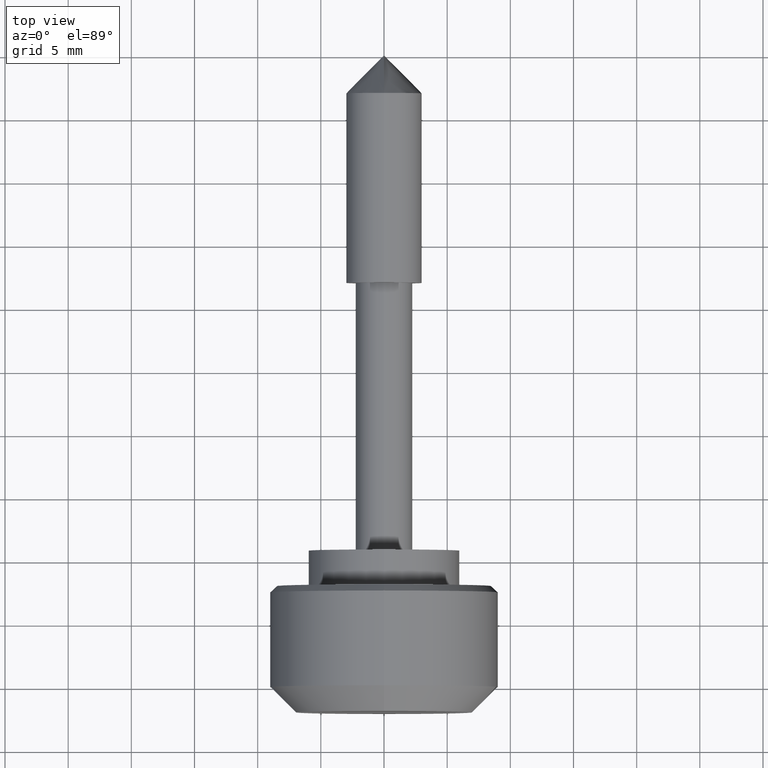
[diagram: clean part render]
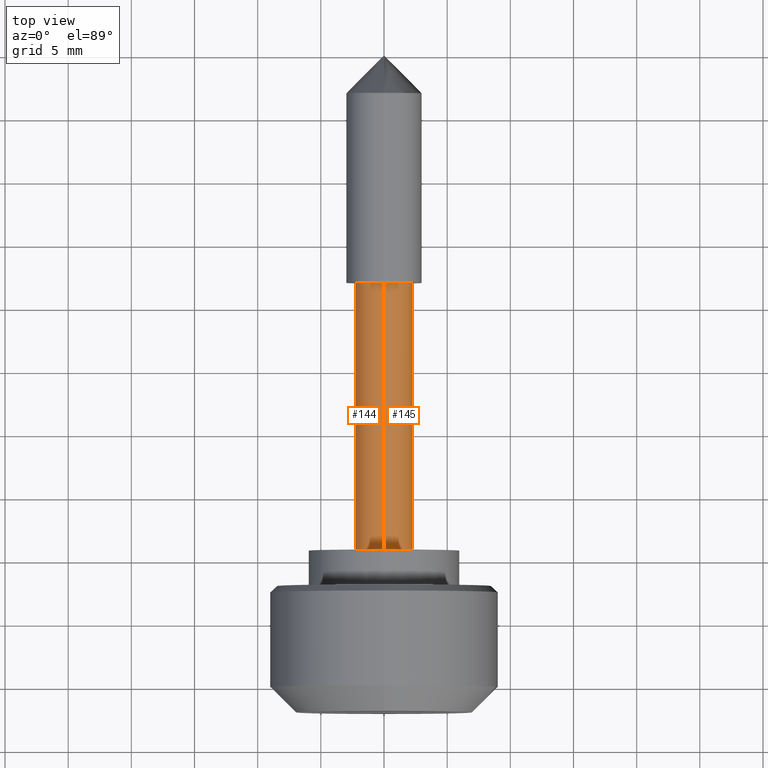
[diagram: same view with one multi-face feature highlighted, each face labeled with its STEP entity id]
A machine part, top view. The highlighted faces form ONE feature: a constant-radius fillet chain: 2 tangent blend faces with common blend radius 2.25 mm. The faces share edges in the B-rep.
Their STEP definitions:
[1] entity #145 (Cylinder):
#145=ADVANCED_FACE('',(#490),#489,.T.);
#489=CYLINDRICAL_SURFACE('',#764,2.25000000000E+00);
#490=FACE_OUTER_BOUND('',#765,.T.);
#761=CARTESIAN_POINT('',(1.00000000000E+03,0.00000000000E+00,0.00000000000E+00));
#762=DIRECTION('',(1.00000000000E+00,-0.00000000000E+00,-0.00000000000E+00));
#763=DIRECTION('',(-0.00000000000E+00,-0.00000000000E+00,-1.00000000000E+00));
#764=AXIS2_PLACEMENT_3D('',#761,#762,#763);
#765=EDGE_LOOP('',(#988,#989,#990,#991));
#988=ORIENTED_EDGE('',*,*,#1090,.T.);
#989=ORIENTED_EDGE('',*,*,#1116,.T.);
#990=ORIENTED_EDGE('',*,*,#1095,.F.);
#991=ORIENTED_EDGE('',*,*,#1117,.F.);
#1090=EDGE_CURVE('',#1532,#1533,#1534,.T.);
#1095=EDGE_CURVE('',#1561,#1560,#1568,.T.);
#1116=EDGE_CURVE('',#1533,#1560,#1706,.T.);
#1117=EDGE_CURVE('',#1532,#1561,#1712,.T.);
#1532=VERTEX_POINT('',#2041);
#1533=VERTEX_POINT('',#2042);
#1534=CIRCLE('',#2046,2.25000000000E+00);
#1560=VERTEX_POINT('',#2061);
#1561=VERTEX_POINT('',#2062);
#1568=CIRCLE('',#2070,2.25000000000E+00);
#1706=(BOUNDED_CURVE() B_SPLINE_CURVE(1,(#2151,#2152),.UNSPECIFIED.,.F.,.F.) B_SPLINE_CURVE_WITH_KNOTS((2,2),(8.33333328360E-02,9.16666665505E-01),.UNSPECIFIED.) CURVE() GEOMETRIC_REPRESENTATION_ITEM() RATIONAL_B_SPLINE_CURVE((1.00000000000E+00,1.00000000000E+00)) REPRESENTATION_ITEM('') );
#1712=(BOUNDED_CURVE() B_SPLINE_CURVE(1,(#2153,#2154),.UNSPECIFIED.,.F.,.F.) B_SPLINE_CURVE_WITH_KNOTS((2,2),(8.33333333333E-02,9.16666666667E-01),.UNSPECIFIED.) CURVE() GEOMETRIC_REPRESENTATION_ITEM() RATIONAL_B_SPLINE_CURVE((7.50000000000E-01,7.50000000000E-01)) REPRESENTATION_ITEM('') );
#2041=CARTESIAN_POINT('',(0.00000000000E+00,1.48029736617E-16,2.25000000000E+00));
#2042=CARTESIAN_POINT('',(0.00000000000E+00,0.00000000000E+00,-2.25000000000E+00));
#2043=CARTESIAN_POINT('',(0.00000000000E+00,0.00000000000E+00,0.00000000000E+00));
#2044=DIRECTION('',(1.00000000000E+00,0.00000000000E+00,0.00000000000E+00));
#2045=DIRECTION('',(0.00000000000E+00,-1.22460635382E-16,-1.00000000000E+00));
#2046=AXIS2_PLACEMENT_3D('',#2043,#2044,#2045);
#2061=CARTESIAN_POINT('',(2.20000000000E+01,0.00000000000E+00,-2.25000000000E+00));
#2062=CARTESIAN_POINT('',(2.20000000000E+01,1.48029736617E-16,2.25000000000E+00));
#2067=CARTESIAN_POINT('',(2.20000000000E+01,0.00000000000E+00,0.00000000000E+00));
#2068=DIRECTION('',(1.00000000000E+00,0.00000000000E+00,0.00000000000E+00));
#2069=DIRECTION('',(0.00000000000E+00,-1.22460635382E-16,-1.00000000000E+00));
#2070=AXIS2_PLACEMENT_3D('',#2067,#2068,#2069);
#2151=CARTESIAN_POINT('',(-1.31306601148E-08,0.00000000000E+00,-2.25000000000E+00));
#2152=CARTESIAN_POINT('',(2.19999999693E+01,0.00000000000E+00,-2.25000000000E+00));
#2153=CARTESIAN_POINT('',(2.96059473233E-16,-1.48029736617E-16,2.25000000000E+00));
#2154=CARTESIAN_POINT('',(2.20000000000E+01,-1.48029736617E-16,2.25000000000E+00));
[2] entity #144 (Cylinder):
#144=ADVANCED_FACE('',(#480),#479,.T.);
#479=CYLINDRICAL_SURFACE('',#759,2.25000000000E+00);
#480=FACE_OUTER_BOUND('',#760,.T.);
#756=CARTESIAN_POINT('',(1.00000000000E+03,0.00000000000E+00,0.00000000000E+00));
#757=DIRECTION('',(1.00000000000E+00,-0.00000000000E+00,-0.00000000000E+00));
#758=DIRECTION('',(-0.00000000000E+00,-0.00000000000E+00,-1.00000000000E+00));
#759=AXIS2_PLACEMENT_3D('',#756,#757,#758);
#760=EDGE_LOOP('',(#984,#985,#986,#987));
#984=ORIENTED_EDGE('',*,*,#1094,.F.);
#985=ORIENTED_EDGE('',*,*,#1116,.F.);
#986=ORIENTED_EDGE('',*,*,#1091,.T.);
#987=ORIENTED_EDGE('',*,*,#1117,.T.);
#1091=EDGE_CURVE('',#1533,#1532,#1540,.T.);
#1094=EDGE_CURVE('',#1560,#1561,#1562,.T.);
#1116=EDGE_CURVE('',#1533,#1560,#1706,.T.);
#1117=EDGE_CURVE('',#1532,#1561,#1712,.T.);
#1532=VERTEX_POINT('',#2041);
#1533=VERTEX_POINT('',#2042);
#1540=CIRCLE('',#2050,2.25000000000E+00);
#1560=VERTEX_POINT('',#2061);
#1561=VERTEX_POINT('',#2062);
#1562=CIRCLE('',#2066,2.25000000000E+00);
#1706=(BOUNDED_CURVE() B_SPLINE_CURVE(1,(#2151,#2152),.UNSPECIFIED.,.F.,.F.) B_SPLINE_CURVE_WITH_KNOTS((2,2),(8.33333328360E-02,9.16666665505E-01),.UNSPECIFIED.) CURVE() GEOMETRIC_REPRESENTATION_ITEM() RATIONAL_B_SPLINE_CURVE((1.00000000000E+00,1.00000000000E+00)) REPRESENTATION_ITEM('') );
#1712=(BOUNDED_CURVE() B_SPLINE_CURVE(1,(#2153,#2154),.UNSPECIFIED.,.F.,.F.) B_SPLINE_CURVE_WITH_KNOTS((2,2),(8.33333333333E-02,9.16666666667E-01),.UNSPECIFIED.) CURVE() GEOMETRIC_REPRESENTATION_ITEM() RATIONAL_B_SPLINE_CURVE((7.50000000000E-01,7.50000000000E-01)) REPRESENTATION_ITEM('') );
#2041=CARTESIAN_POINT('',(0.00000000000E+00,1.48029736617E-16,2.25000000000E+00));
#2042=CARTESIAN_POINT('',(0.00000000000E+00,0.00000000000E+00,-2.25000000000E+00));
#2047=CARTESIAN_POINT('',(0.00000000000E+00,0.00000000000E+00,0.00000000000E+00));
#2048=DIRECTION('',(1.00000000000E+00,0.00000000000E+00,0.00000000000E+00));
#2049=DIRECTION('',(0.00000000000E+00,-1.22460635382E-16,-1.00000000000E+00));
#2050=AXIS2_PLACEMENT_3D('',#2047,#2048,#2049);
#2061=CARTESIAN_POINT('',(2.20000000000E+01,0.00000000000E+00,-2.25000000000E+00));
#2062=CARTESIAN_POINT('',(2.20000000000E+01,1.48029736617E-16,2.25000000000E+00));
#2063=CARTESIAN_POINT('',(2.20000000000E+01,0.00000000000E+00,0.00000000000E+00));
#2064=DIRECTION('',(1.00000000000E+00,0.00000000000E+00,0.00000000000E+00));
#2065=DIRECTION('',(0.00000000000E+00,-1.22460635382E-16,-1.00000000000E+00));
#2066=AXIS2_PLACEMENT_3D('',#2063,#2064,#2065);
#2151=CARTESIAN_POINT('',(-1.31306601148E-08,0.00000000000E+00,-2.25000000000E+00));
#2152=CARTESIAN_POINT('',(2.19999999693E+01,0.00000000000E+00,-2.25000000000E+00));
#2153=CARTESIAN_POINT('',(2.96059473233E-16,-1.48029736617E-16,2.25000000000E+00));
#2154=CARTESIAN_POINT('',(2.20000000000E+01,-1.48029736617E-16,2.25000000000E+00));